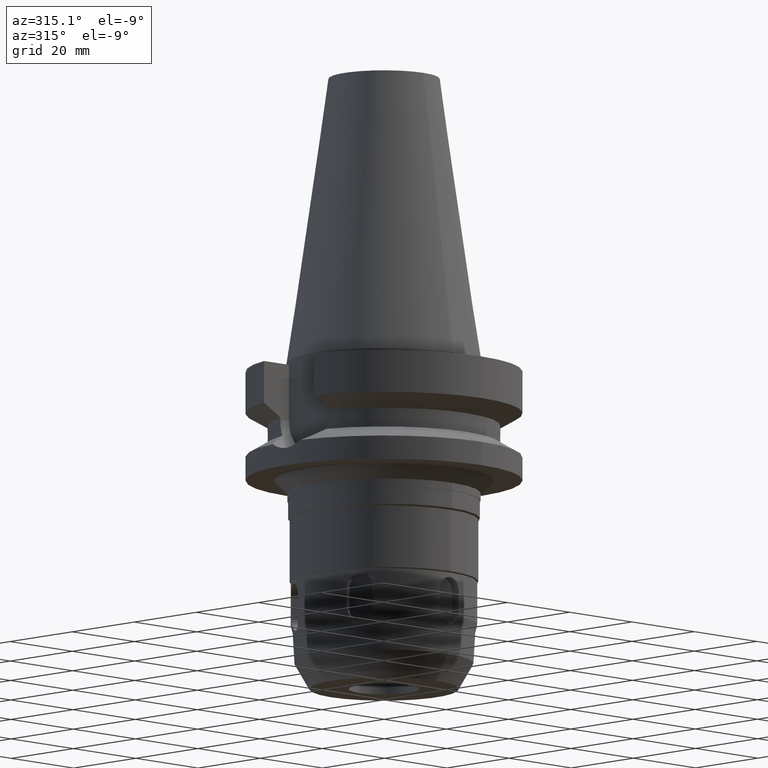
[diagram: clean part render]
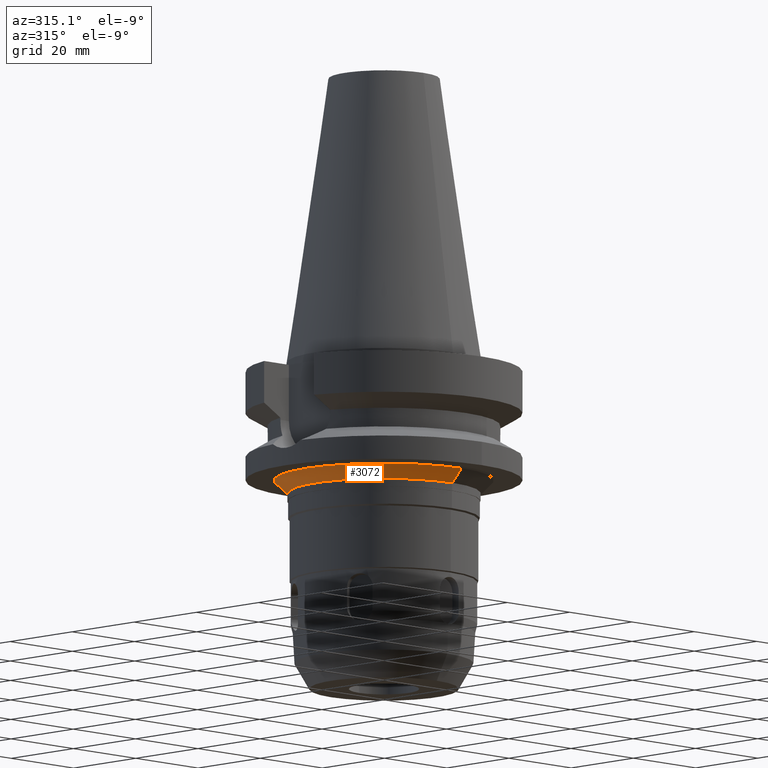
[diagram: same view with one face highlighted and labeled with its STEP entity id]
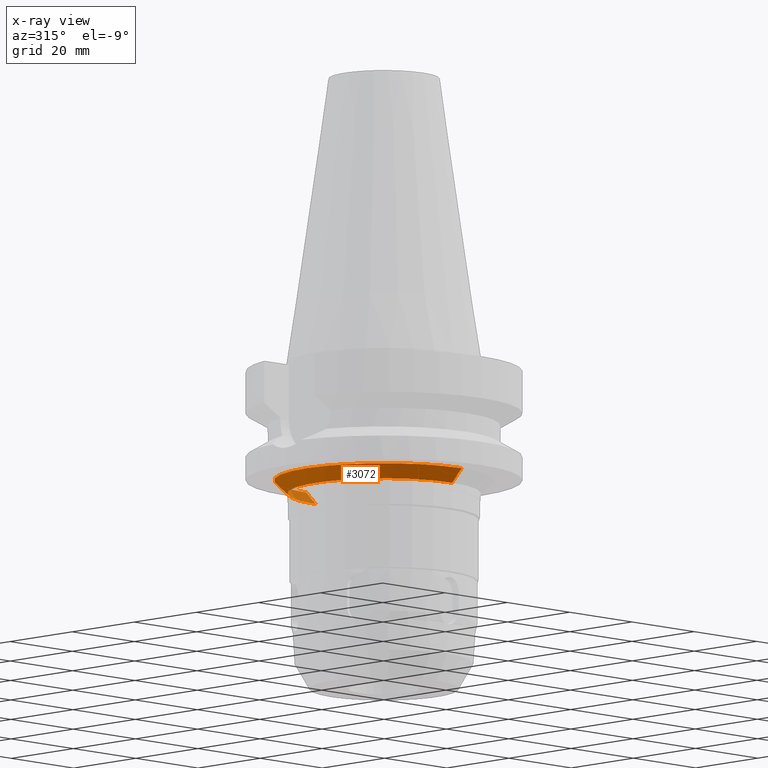
[diagram: x-ray of the same camera — body ghosted, the highlighted face saturated]
A machine part, auxiliary view. The second image highlights one B-rep face of the part: STEP entity #3072.
The next image is the same camera in x-ray: the body ghosted, the highlighted face saturated — about 6% of this face is hidden behind the body in this view.
In plain terms, the highlighted conical surface has half-angle 45 deg.
Its self-contained STEP definition (entity closure, byte-faithful):
#644=CARTESIAN_POINT('',(0.E0,0.E0,-2.7E1));
#645=DIRECTION('',(0.E0,0.E0,-1.E0));
#646=DIRECTION('',(0.E0,-1.E0,0.E0));
#647=AXIS2_PLACEMENT_3D('',#644,#645,#646);
#660=DIRECTION('',(0.E0,7.071067811865E-1,-7.071067811865E-1));
#661=VECTOR('',#660,4.242640687119E0);
#662=CARTESIAN_POINT('',(0.E0,-2.5E1,-2.7E1));
#663=LINE('',#662,#661);
#667=CARTESIAN_POINT('',(0.E0,0.E0,-3.E1));
#668=DIRECTION('',(0.E0,0.E0,-1.E0));
#669=DIRECTION('',(0.E0,-1.E0,0.E0));
#670=AXIS2_PLACEMENT_3D('',#667,#668,#669);
#675=DIRECTION('',(0.E0,-7.071067811865E-1,-7.071067811866E-1));
#676=VECTOR('',#675,4.242640687119E0);
#677=CARTESIAN_POINT('',(0.E0,2.5E1,-2.7E1));
#678=LINE('',#677,#676);
#2486=CARTESIAN_POINT('',(0.E0,2.2E1,-3.E1));
#2487=VERTEX_POINT('',#2486);
#2488=CARTESIAN_POINT('',(0.E0,-2.2E1,-3.E1));
#2489=VERTEX_POINT('',#2488);
#2490=CARTESIAN_POINT('',(0.E0,2.5E1,-2.7E1));
#2491=VERTEX_POINT('',#2490);
#2492=CARTESIAN_POINT('',(0.E0,-2.5E1,-2.7E1));
#2493=VERTEX_POINT('',#2492);
#3058=CARTESIAN_POINT('',(0.E0,0.E0,-2.85E1));
#3059=DIRECTION('',(0.E0,0.E0,1.E0));
#3060=DIRECTION('',(0.E0,1.E0,0.E0));
#3061=AXIS2_PLACEMENT_3D('',#3058,#3059,#3060);
#3062=CONICAL_SURFACE('',#3061,2.35E1,4.5E1);
#3064=ORIENTED_EDGE('',*,*,#3063,.F.);
#3065=ORIENTED_EDGE('',*,*,#3051,.F.);
#3067=ORIENTED_EDGE('',*,*,#3066,.T.);
#3069=ORIENTED_EDGE('',*,*,#3068,.T.);
#3070=EDGE_LOOP('',(#3064,#3065,#3067,#3069));
#3071=FACE_OUTER_BOUND('',#3070,.F.);
#648=CIRCLE('',#647,2.5E1);
#671=CIRCLE('',#670,2.2E1);
#3051=EDGE_CURVE('',#2493,#2491,#648,.T.);
#3063=EDGE_CURVE('',#2491,#2487,#678,.T.);
#3066=EDGE_CURVE('',#2493,#2489,#663,.T.);
#3068=EDGE_CURVE('',#2489,#2487,#671,.T.);
#3072=ADVANCED_FACE('',(#3071),#3062,.T.);